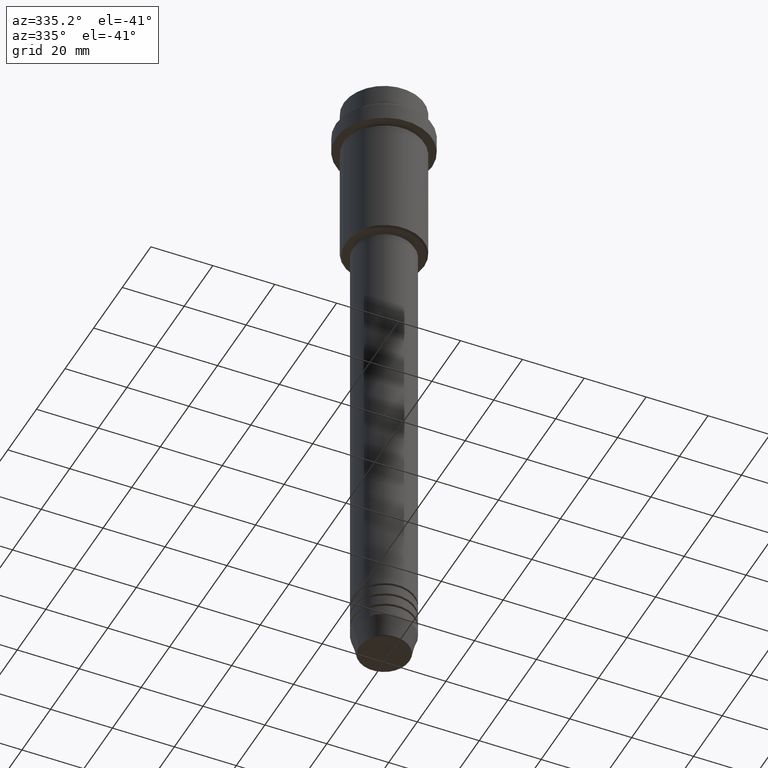
[diagram: clean part render]
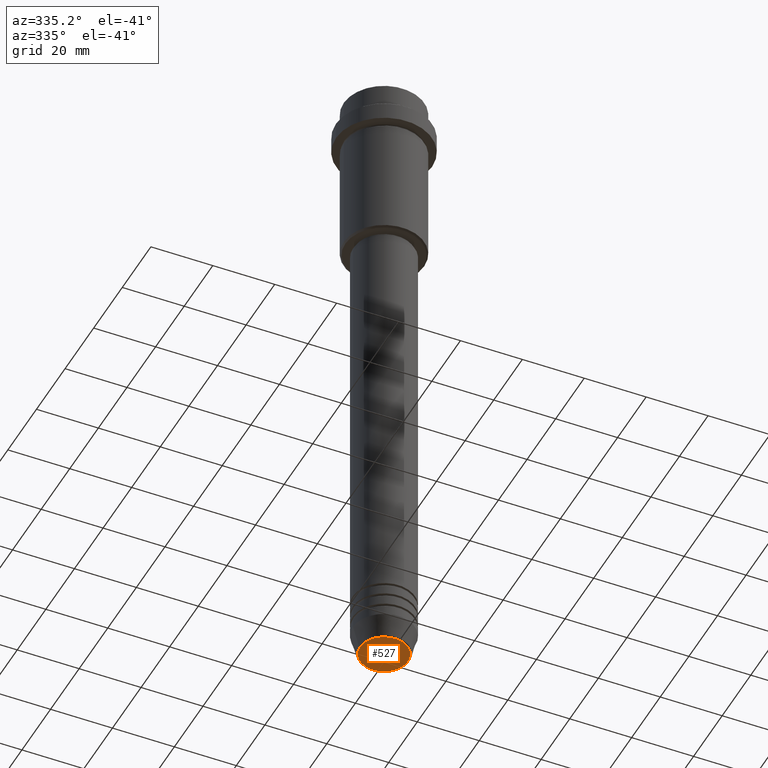
[diagram: same view with one face highlighted and labeled with its STEP entity id]
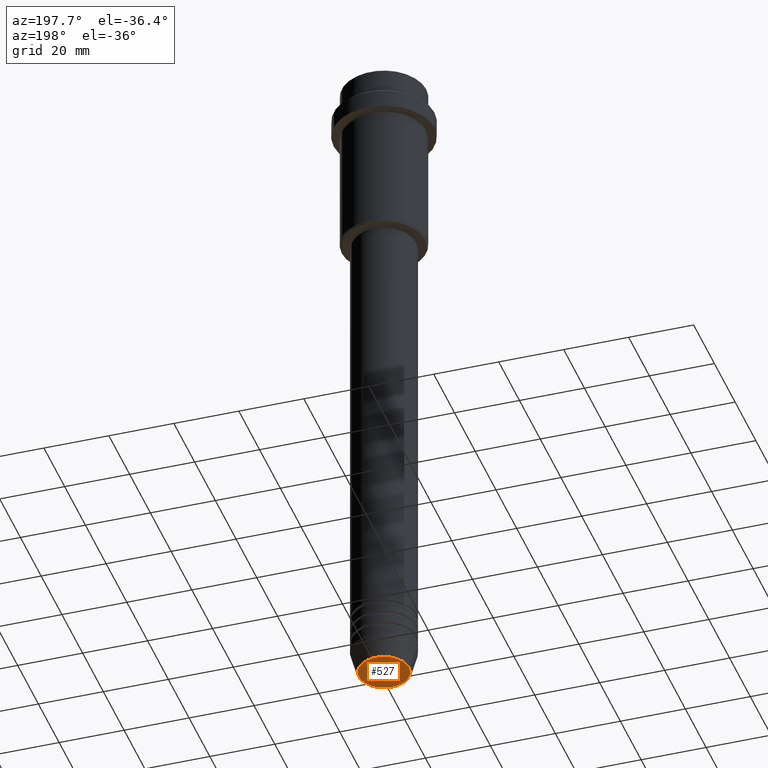
[diagram: same view with one face highlighted and labeled with its STEP entity id]
A machine part, auxiliary view. The second image highlights one B-rep face of the part: STEP entity #527.
A second angle (auxiliary view) of the same face is appended — the face is thin or edge-on in the first view.
In plain terms, the highlighted planar face has unit normal (0, -0, 1).
Its self-contained STEP definition (entity closure, byte-faithful):
#14 = EDGE_CURVE ( 'NONE', #693, #883, #1108, .T. ) ;
#22 = EDGE_LOOP ( 'NONE', ( #763, #576 ) ) ;
#99 = DIRECTION ( 'NONE',  ( 1.000000000000000000, 0.000000000000000000, 0.000000000000000000 ) ) ;
#182 = DIRECTION ( 'NONE',  ( 1.000000000000000000, 0.000000000000000000, 0.000000000000000000 ) ) ;
#231 = DIRECTION ( 'NONE',  ( 0.000000000000000000, 0.000000000000000000, -1.000000000000000000 ) ) ;
#306 = PLANE ( 'NONE',  #950 ) ;
#343 = CARTESIAN_POINT ( 'NONE',  ( -7.740692158992658278, 9.775343368540041107E-16, -210.0000000000000284 ) ) ;
#421 = CARTESIAN_POINT ( 'NONE',  ( 0.000000000000000000, 0.000000000000000000, -210.0000000000000284 ) ) ;
#443 = CARTESIAN_POINT ( 'NONE',  ( 0.000000000000000000, 0.000000000000000000, -210.0000000000000284 ) ) ;
#527 = ADVANCED_FACE ( 'NONE', ( #1303 ), #306, .F. ) ;
#541 = DIRECTION ( 'NONE',  ( 0.000000000000000000, -0.000000000000000000, 1.000000000000000000 ) ) ;
#576 = ORIENTED_EDGE ( 'NONE', *, *, #641, .T. ) ;
#641 = EDGE_CURVE ( 'NONE', #883, #693, #721, .T. ) ;
#693 = VERTEX_POINT ( 'NONE', #1175 ) ;
#721 = CIRCLE ( 'NONE', #743, 7.740692158992658278 ) ;
#741 = CARTESIAN_POINT ( 'NONE',  ( 0.000000000000000000, 0.000000000000000000, -210.0000000000000284 ) ) ;
#743 = AXIS2_PLACEMENT_3D ( 'NONE', #443, #231, #99 ) ;
#763 = ORIENTED_EDGE ( 'NONE', *, *, #14, .T. ) ;
#883 = VERTEX_POINT ( 'NONE', #343 ) ;
#950 = AXIS2_PLACEMENT_3D ( 'NONE', #741, #541, #1210 ) ;
#961 = DIRECTION ( 'NONE',  ( 0.000000000000000000, 0.000000000000000000, -1.000000000000000000 ) ) ;
#1108 = CIRCLE ( 'NONE', #1261, 7.740692158992658278 ) ;
#1175 = CARTESIAN_POINT ( 'NONE',  ( 7.740692158992658278, 0.000000000000000000, -210.0000000000000284 ) ) ;
#1210 = DIRECTION ( 'NONE',  ( 1.000000000000000000, 0.000000000000000000, 0.000000000000000000 ) ) ;
#1261 = AXIS2_PLACEMENT_3D ( 'NONE', #421, #961, #182 ) ;
#1303 = FACE_OUTER_BOUND ( 'NONE', #22, .T. ) ;